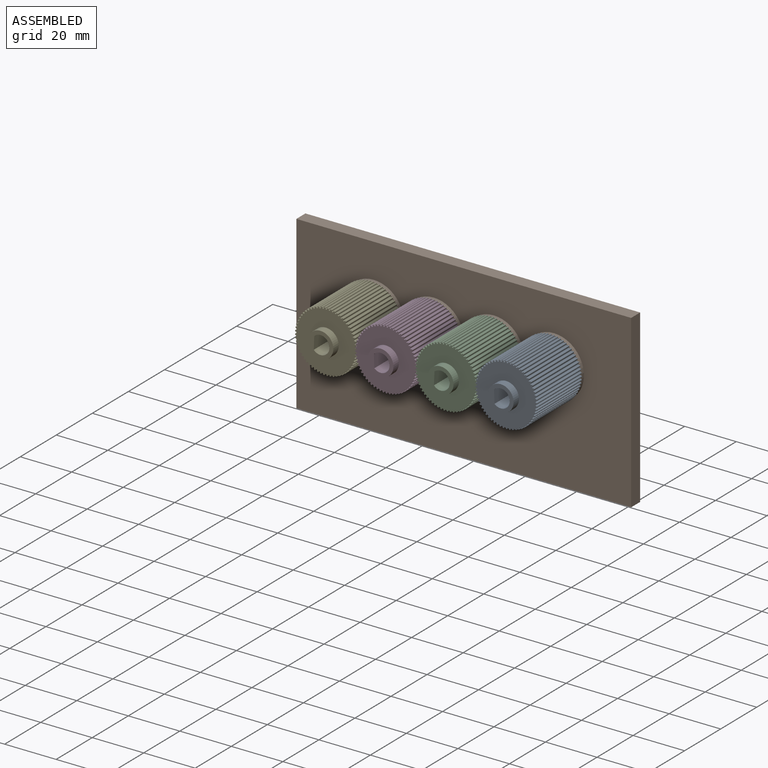
[diagram: assembled view]
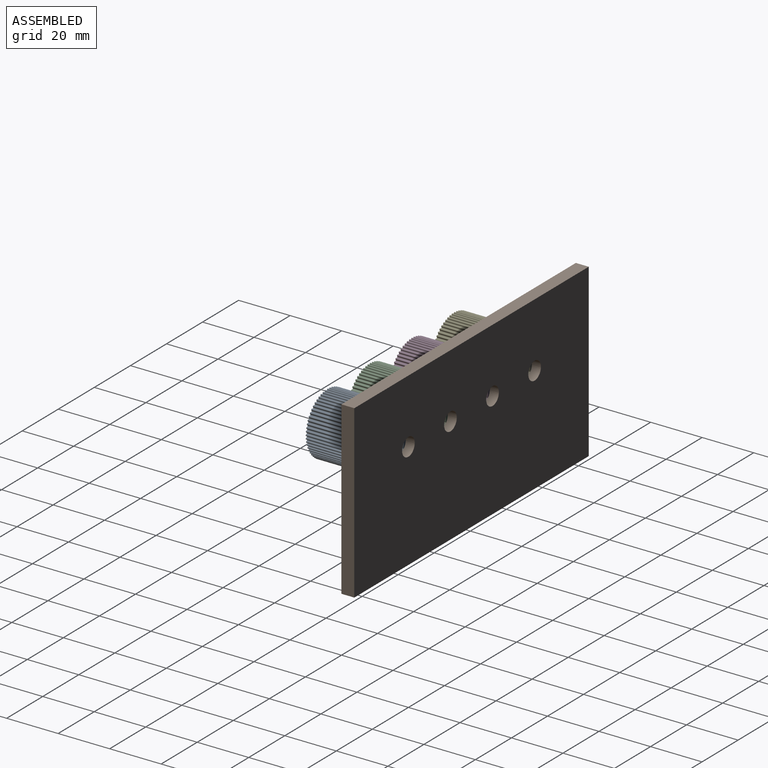
[diagram: assembled view, second angle]
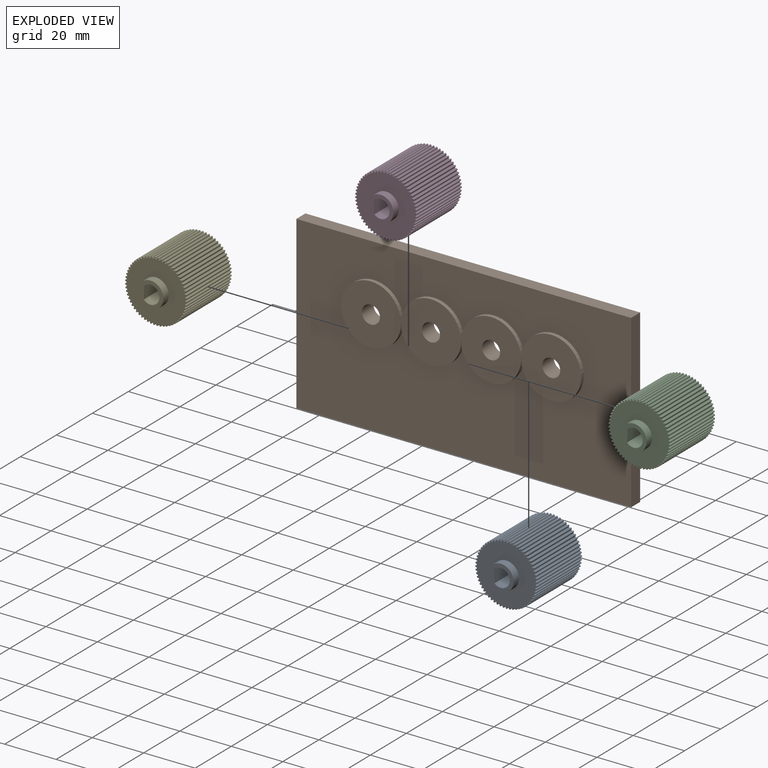
[diagram: exploded view]
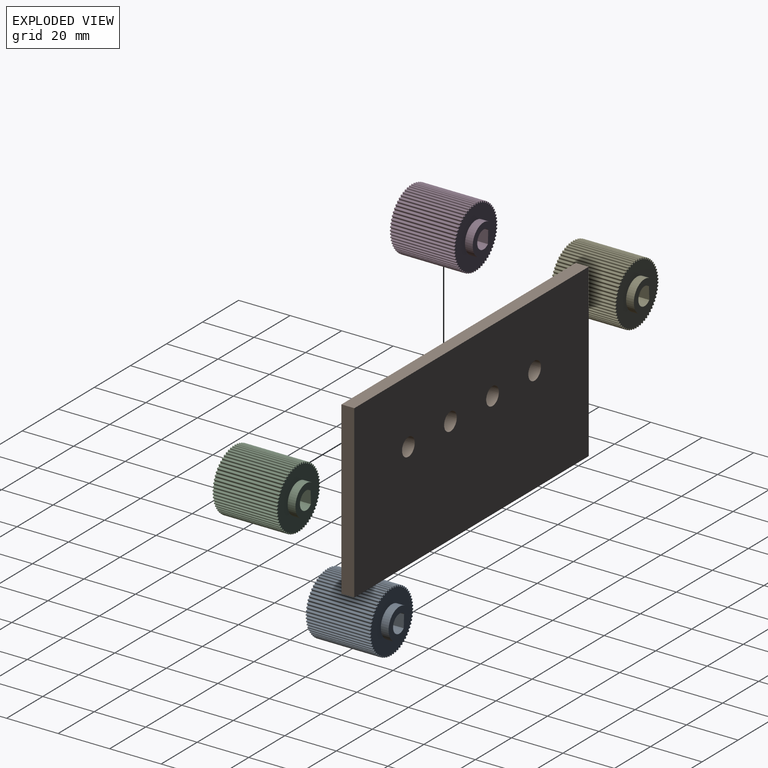
[diagram: exploded view, second angle]
ASSEMBLY  parts=5 mates=4
PART A: 128 faces, bbox 23.9x31x23.9 mm
  f0: plane 10x10mm, normal (0,-1,0), area 43.4mm2, adj f124,f126,f127
  f1: plane 12x12mm, normal (0,1,0), area 78mm2, adj f125,f126,f127
  f2: cylinder r=0.31mm len=25mm, axis (0,-1,0), area 23.6mm2, adj f3,f4,f5,f90
  f3: cylinder r=0.31mm len=25mm, axis (0,-1,0), area 24.4mm2, adj f2,f4,f5,f38
  f4: plane 23.94x23.94mm, normal (0,1,0), area 314.6mm2, adj f2,f3,f6,f7,f8,f9,f10,f11
  f5: plane 23.94x23.94mm, normal (0,-1,0), area 349.2mm2, adj f2,f3,f6,f7,f8,f9,f10,f11
  f6: cylinder r=0.31mm len=25mm, axis (0,-1,0), area 23.6mm2, adj f4,f5,f122,f123
  f7: cylinder r=0.31mm len=25mm, axis (0,-1,0), area 23.6mm2, adj f4,f5,f121,f122
  f8: cylinder r=0.31mm len=25mm, axis (0,-1,0), area 23.6mm2, adj f4,f5,f120,f121
  f9: cylinder r=0.31mm len=25mm, axis (0,-1,0), area 23.6mm2, adj f4,f5,f119,f120
  f10: cylinder r=0.31mm len=25mm, axis (0,-1,0), area 23.6mm2, adj f4,f5,f118,f119
  f11: cylinder r=0.31mm len=25mm, axis (0,-1,0), area 23.6mm2, adj f4,f5,f117,f118
  f12: cylinder r=0.31mm len=25mm, axis (0,-1,0), area 23.6mm2, adj f4,f5,f116,f117
  f13: cylinder r=0.31mm len=25mm, axis (0,-1,0), area 23.6mm2, adj f4,f5,f115,f116
  f14: cylinder r=0.31mm len=25mm, axis (0,-1,0), area 23.6mm2, adj f4,f5,f114,f115
  f15: cylinder r=0.31mm len=25mm, axis (0,-1,0), area 23.6mm2, adj f4,f5,f113,f114
  f16: cylinder r=0.31mm len=25mm, axis (0,-1,0), area 23.6mm2, adj f4,f5,f112,f113
  f17: cylinder r=0.31mm len=25mm, axis (0,-1,0), area 23.6mm2, adj f4,f5,f111,f112
  f18: cylinder r=0.31mm len=25mm, axis (0,-1,0), area 23.6mm2, adj f4,f5,f110,f111
  f19: cylinder r=0.31mm len=25mm, axis (0,-1,0), area 23.6mm2, adj f4,f5,f109,f110
  f20: cylinder r=0.31mm len=25mm, axis (0,-1,0), area 23.6mm2, adj f4,f5,f108,f109
  f21: cylinder r=0.31mm len=25mm, axis (0,-1,0), area 23.6mm2, adj f4,f5,f107,f108
  f22: cylinder r=0.31mm len=25mm, axis (0,-1,0), area 23.6mm2, adj f4,f5,f106,f107
  f23: cylinder r=0.31mm len=25mm, axis (0,-1,0), area 23.6mm2, adj f4,f5,f105,f106
  f24: cylinder r=0.31mm len=25mm, axis (0,-1,0), area 23.6mm2, adj f4,f5,f104,f105
  f25: cylinder r=0.31mm len=25mm, axis (0,-1,0), area 23.6mm2, adj f4,f5,f103,f104
  f26: cylinder r=0.31mm len=25mm, axis (0,-1,0), area 23.6mm2, adj f4,f5,f102,f103
  f27: cylinder r=0.31mm len=25mm, axis (0,-1,0), area 23.6mm2, adj f4,f5,f101,f102
  f28: cylinder r=0.31mm len=25mm, axis (0,-1,0), area 23.6mm2, adj f4,f5,f100,f101
  f29: cylinder r=0.31mm len=25mm, axis (0,-1,0), area 23.6mm2, adj f4,f5,f99,f100
  f30: cylinder r=0.31mm len=25mm, axis (0,-1,0), area 23.6mm2, adj f4,f5,f98,f99
  f31: cylinder r=0.31mm len=25mm, axis (0,-1,0), area 23.6mm2, adj f4,f5,f97,f98
  f32: cylinder r=0.31mm len=25mm, axis (0,-1,0), area 23.6mm2, adj f4,f5,f96,f97
  f33: cylinder r=0.31mm len=25mm, axis (0,-1,0), area 23.6mm2, adj f4,f5,f95,f96
  f34: cylinder r=0.31mm len=25mm, axis (0,-1,0), area 23.6mm2, adj f4,f5,f94,f95
  f35: cylinder r=0.31mm len=25mm, axis (0,-1,0), area 23.6mm2, adj f4,f5,f93,f94
  f36: cylinder r=0.31mm len=25mm, axis (0,-1,0), area 23.6mm2, adj f4,f5,f92,f93
  f37: cylinder r=0.31mm len=25mm, axis (0,-1,0), area 23.6mm2, adj f4,f5,f91,f92
  f38: cylinder r=0.31mm len=25mm, axis (0,-1,0), area 23.6mm2, adj f3,f4,f5,f91
  f39: cylinder r=0.31mm len=25mm, axis (0,-1,0), area 23.6mm2, adj f4,f5,f89,f90
  f40: cylinder r=0.31mm len=25mm, axis (0,-1,0), area 23.6mm2, adj f4,f5,f88,f89
  f41: cylinder r=0.31mm len=25mm, axis (0,-1,0), area 23.6mm2, adj f4,f5,f87,f88
  f42: cylinder r=0.31mm len=25mm, axis (0,-1,0), area 23.6mm2, adj f4,f5,f86,f87
  f43: cylinder r=0.31mm len=25mm, axis (0,-1,0), area 23.6mm2, adj f4,f5,f85,f86
  f44: cylinder r=0.31mm len=25mm, axis (0,-1,0), area 23.6mm2, adj f4,f5,f84,f85
  f45: cylinder r=0.31mm len=25mm, axis (0,-1,0), area 23.6mm2, adj f4,f5,f83,f84
  f46: cylinder r=0.31mm len=25mm, axis (0,-1,0), area 23.6mm2, adj f4,f5,f82,f83
  f47: cylinder r=0.31mm len=25mm, axis (0,-1,0), area 23.6mm2, adj f4,f5,f81,f82
  f48: cylinder r=0.31mm len=25mm, axis (0,-1,0), area 23.6mm2, adj f4,f5,f80,f81
  f49: cylinder r=0.31mm len=25mm, axis (0,-1,0), area 23.6mm2, adj f4,f5,f79,f80
  f50: cylinder r=0.31mm len=25mm, axis (0,-1,0), area 23.6mm2, adj f4,f5,f78,f79
  f51: cylinder r=0.31mm len=25mm, axis (0,-1,0), area 23.6mm2, adj f4,f5,f77,f78
  f52: cylinder r=0.31mm len=25mm, axis (0,-1,0), area 23.6mm2, adj f4,f5,f76,f77
  f53: cylinder r=0.31mm len=25mm, axis (0,-1,0), area 23.6mm2, adj f4,f5,f75,f76
  f54: cylinder r=0.31mm len=25mm, axis (0,-1,0), area 23.6mm2, adj f4,f5,f74,f75
  f55: cylinder r=0.31mm len=25mm, axis (0,-1,0), area 23.6mm2, adj f4,f5,f73,f74
  f56: cylinder r=0.31mm len=25mm, axis (0,-1,0), area 23.6mm2, adj f4,f5,f72,f73
  f57: cylinder r=0.31mm len=25mm, axis (0,-1,0), area 23.6mm2, adj f4,f5,f71,f72
  f58: cylinder r=0.31mm len=25mm, axis (0,-1,0), area 23.6mm2, adj f4,f5,f70,f71
  f59: cylinder r=0.31mm len=25mm, axis (0,-1,0), area 23.6mm2, adj f4,f5,f69,f70
  f60: cylinder r=0.31mm len=25mm, axis (0,-1,0), area 23.6mm2, adj f4,f5,f68,f69
  f61: cylinder r=0.31mm len=25mm, axis (0,-1,0), area 23.6mm2, adj f4,f5,f67,f68
  f62: cylinder r=0.31mm len=25mm, axis (0,-1,0), area 23.6mm2, adj f4,f5,f66,f67
  f63: cylinder r=0.31mm len=25mm, axis (0,-1,0), area 23.6mm2, adj f4,f5,f65,f66
  f64: cylinder r=0.31mm len=25mm, axis (0,-1,0), area 23.6mm2, adj f4,f5,f65,f123
  f65: cylinder r=0.31mm len=25mm, axis (0,-1,0), area 24.4mm2, adj f4,f5,f63,f64
  f66: cylinder r=0.31mm len=25mm, axis (0,-1,0), area 24.4mm2, adj f4,f5,f62,f63
  f67: cylinder r=0.31mm len=25mm, axis (0,-1,0), area 24.4mm2, adj f4,f5,f61,f62
  f68: cylinder r=0.31mm len=25mm, axis (0,-1,0), area 24.4mm2, adj f4,f5,f60,f61
  f69: cylinder r=0.31mm len=25mm, axis (0,-1,0), area 24.4mm2, adj f4,f5,f59,f60
  f70: cylinder r=0.31mm len=25mm, axis (0,-1,0), area 24.4mm2, adj f4,f5,f58,f59
  f71: cylinder r=0.31mm len=25mm, axis (0,-1,0), area 24.4mm2, adj f4,f5,f57,f58
  f72: cylinder r=0.31mm len=25mm, axis (0,-1,0), area 24.4mm2, adj f4,f5,f56,f57
  f73: cylinder r=0.31mm len=25mm, axis (0,-1,0), area 24.4mm2, adj f4,f5,f55,f56
  f74: cylinder r=0.31mm len=25mm, axis (0,-1,0), area 24.4mm2, adj f4,f5,f54,f55
  f75: cylinder r=0.31mm len=25mm, axis (0,-1,0), area 24.4mm2, adj f4,f5,f53,f54
  f76: cylinder r=0.31mm len=25mm, axis (0,-1,0), area 24.4mm2, adj f4,f5,f52,f53
  f77: cylinder r=0.31mm len=25mm, axis (0,-1,0), area 24.4mm2, adj f4,f5,f51,f52
  f78: cylinder r=0.31mm len=25mm, axis (0,-1,0), area 24.4mm2, adj f4,f5,f50,f51
  f79: cylinder r=0.31mm len=25mm, axis (0,-1,0), area 24.4mm2, adj f4,f5,f49,f50
  f80: cylinder r=0.31mm len=25mm, axis (0,-1,0), area 24.4mm2, adj f4,f5,f48,f49
  f81: cylinder r=0.31mm len=25mm, axis (0,-1,0), area 24.4mm2, adj f4,f5,f47,f48
  f82: cylinder r=0.31mm len=25mm, axis (0,-1,0), area 24.4mm2, adj f4,f5,f46,f47
  f83: cylinder r=0.31mm len=25mm, axis (0,-1,0), area 24.4mm2, adj f4,f5,f45,f46
  f84: cylinder r=0.31mm len=25mm, axis (0,-1,0), area 24.4mm2, adj f4,f5,f44,f45
  f85: cylinder r=0.31mm len=25mm, axis (0,-1,0), area 24.4mm2, adj f4,f5,f43,f44
  f86: cylinder r=0.31mm len=25mm, axis (0,-1,0), area 24.4mm2, adj f4,f5,f42,f43
  f87: cylinder r=0.31mm len=25mm, axis (0,-1,0), area 24.4mm2, adj f4,f5,f41,f42
  f88: cylinder r=0.31mm len=25mm, axis (0,-1,0), area 24.4mm2, adj f4,f5,f40,f41
  f89: cylinder r=0.31mm len=25mm, axis (0,-1,0), area 24.4mm2, adj f4,f5,f39,f40
  f90: cylinder r=0.31mm len=25mm, axis (0,-1,0), area 24.4mm2, adj f2,f4,f5,f39
  f91: cylinder r=0.31mm len=25mm, axis (0,-1,0), area 24.4mm2, adj f4,f5,f37,f38
  f92: cylinder r=0.31mm len=25mm, axis (0,-1,0), area 24.4mm2, adj f4,f5,f36,f37
  f93: cylinder r=0.31mm len=25mm, axis (0,-1,0), area 24.4mm2, adj f4,f5,f35,f36
  f94: cylinder r=0.31mm len=25mm, axis (0,-1,0), area 24.4mm2, adj f4,f5,f34,f35
  f95: cylinder r=0.31mm len=25mm, axis (0,-1,0), area 24.4mm2, adj f4,f5,f33,f34
  f96: cylinder r=0.31mm len=25mm, axis (0,-1,0), area 24.4mm2, adj f4,f5,f32,f33
  f97: cylinder r=0.31mm len=25mm, axis (0,-1,0), area 24.4mm2, adj f4,f5,f31,f32
  f98: cylinder r=0.31mm len=25mm, axis (0,-1,0), area 24.4mm2, adj f4,f5,f30,f31
  f99: cylinder r=0.31mm len=25mm, axis (0,-1,0), area 24.4mm2, adj f4,f5,f29,f30
  f100: cylinder r=0.31mm len=25mm, axis (0,-1,0), area 24.4mm2, adj f4,f5,f28,f29
  f101: cylinder r=0.31mm len=25mm, axis (0,-1,0), area 24.4mm2, adj f4,f5,f27,f28
  f102: cylinder r=0.31mm len=25mm, axis (0,-1,0), area 24.4mm2, adj f4,f5,f26,f27
  f103: cylinder r=0.31mm len=25mm, axis (0,-1,0), area 24.4mm2, adj f4,f5,f25,f26
  f104: cylinder r=0.31mm len=25mm, axis (0,-1,0), area 24.4mm2, adj f4,f5,f24,f25
  f105: cylinder r=0.31mm len=25mm, axis (0,-1,0), area 24.4mm2, adj f4,f5,f23,f24
  f106: cylinder r=0.31mm len=25mm, axis (0,-1,0), area 24.4mm2, adj f4,f5,f22,f23
  f107: cylinder r=0.31mm len=25mm, axis (0,-1,0), area 24.4mm2, adj f4,f5,f21,f22
  f108: cylinder r=0.31mm len=25mm, axis (0,-1,0), area 24.4mm2, adj f4,f5,f20,f21
  f109: cylinder r=0.31mm len=25mm, axis (0,-1,0), area 24.4mm2, adj f4,f5,f19,f20
  f110: cylinder r=0.31mm len=25mm, axis (0,-1,0), area 24.4mm2, adj f4,f5,f18,f19
  f111: cylinder r=0.31mm len=25mm, axis (0,-1,0), area 24.4mm2, adj f4,f5,f17,f18
  f112: cylinder r=0.31mm len=25mm, axis (0,-1,0), area 24.4mm2, adj f4,f5,f16,f17
  f113: cylinder r=0.31mm len=25mm, axis (0,-1,0), area 24.4mm2, adj f4,f5,f15,f16
  f114: cylinder r=0.31mm len=25mm, axis (0,-1,0), area 24.4mm2, adj f4,f5,f14,f15
  f115: cylinder r=0.31mm len=25mm, axis (0,-1,0), area 24.4mm2, adj f4,f5,f13,f14
  f116: cylinder r=0.31mm len=25mm, axis (0,-1,0), area 24.4mm2, adj f4,f5,f12,f13
  f117: cylinder r=0.31mm len=25mm, axis (0,-1,0), area 24.4mm2, adj f4,f5,f11,f12
  f118: cylinder r=0.31mm len=25mm, axis (0,-1,0), area 24.4mm2, adj f4,f5,f10,f11
  f119: cylinder r=0.31mm len=25mm, axis (0,-1,0), area 24.4mm2, adj f4,f5,f9,f10
  f120: cylinder r=0.31mm len=25mm, axis (0,-1,0), area 24.4mm2, adj f4,f5,f8,f9
  f121: cylinder r=0.31mm len=25mm, axis (0,-1,0), area 24.4mm2, adj f4,f5,f7,f8
  f122: cylinder r=0.31mm len=25mm, axis (0,-1,0), area 24.4mm2, adj f4,f5,f6,f7
  f123: cylinder r=0.31mm len=25mm, axis (0,-1,0), area 24.4mm2, adj f4,f5,f6,f64
  f124: cylinder r=5mm len=10mm, axis (0,1,0), area 94.2mm2, adj f0,f5
  f125: cylinder r=6mm len=12mm, axis (0,-1,0), area 113.1mm2, adj f1,f4
  f126: cylinder r=3.5mm len=31mm, axis (0,1,0), area 513.5mm2, adj f0,f1,f127
  f127: plane 31x4.9mm, normal (1,0,0), area 151.9mm2, adj f0,f1,f126
PART B: 18 faces, bbox 130x6.5x66.5 mm
  f0: plane 130x5mm, normal (0,0,1), area 650mm2, adj f1,f7,f8,f9
  f1: plane 66.47x5mm, normal (-1,0,0), area 332.3mm2, adj f0,f2,f8,f9
  f2: plane 130x5mm, normal (0,0,-1), area 650mm2, adj f1,f7,f8,f9
  f3: cylinder r=3.5mm len=7mm, axis (0,1,0), area 142.9mm2, adj f9,f13
  f4: cylinder r=3.5mm len=7mm, axis (0,1,0), area 142.9mm2, adj f9,f11
  f5: cylinder r=3.5mm len=7mm, axis (0,1,0), area 142.9mm2, adj f9,f17
  f6: cylinder r=3.5mm len=7mm, axis (0,1,0), area 142.9mm2, adj f9,f15
  f7: plane 66.47x5mm, normal (1,0,0), area 332.3mm2, adj f0,f2,f8,f9
  f8: plane 130x66.47mm, normal (0,-1,0), area 6935mm2, adj f0,f1,f2,f7,f10,f12,f14,f16
  f9: plane 130x66.47mm, normal (0,1,0), area 8486.6mm2, adj f0,f1,f2,f3,f4,f5,f6,f7
  f10: cylinder r=11.65mm len=23.3mm, axis (0,1,0), area 109.8mm2, adj f8,f11
  f11: plane 23.3x23.3mm, normal (0,-1,0), area 387.9mm2, adj f4,f10
  f12: cylinder r=11.65mm len=23.3mm, axis (0,1,0), area 109.8mm2, adj f8,f13
  f13: plane 23.3x23.3mm, normal (0,-1,0), area 387.9mm2, adj f3,f12
  f14: cylinder r=11.65mm len=23.3mm, axis (0,1,0), area 109.8mm2, adj f8,f15
  f15: plane 23.3x23.3mm, normal (0,-1,0), area 387.9mm2, adj f6,f14
  f16: cylinder r=11.65mm len=23.3mm, axis (0,1,0), area 109.8mm2, adj f8,f17
  f17: plane 23.3x23.3mm, normal (0,-1,0), area 387.9mm2, adj f5,f16
PART C: same geometry as A
PART D: same geometry as A
PART E: same geometry as A
PLACE A rot(axis=(0,-1,0),2.2deg) t=(35,-16.5,8.23)mm
PLACE B at identity fixed
PLACE C rot(axis=(0,1,0),2.2deg) t=(11.67,-16.5,8.23)mm
PLACE D rot(axis=(0,-1,0),2.2deg) t=(-11.67,-16.5,8.23)mm
PLACE E rot(axis=(0,1,0),2.2deg) t=(-35,-16.5,8.23)mm
MATE revolute B.f3 <-> E.f125  axis (0,-1,0) through (-35,-4,8.23)mm
MATE revolute B.f5 <-> C.f125  axis (0,-1,0) through (11.67,-4,8.23)mm
MATE revolute A.f125 <-> B.f4  axis (0,1,0) through (35,-1,8.23)mm
MATE revolute D.f125 <-> B.f6  axis (0,1,0) through (-11.67,-1,8.23)mm
